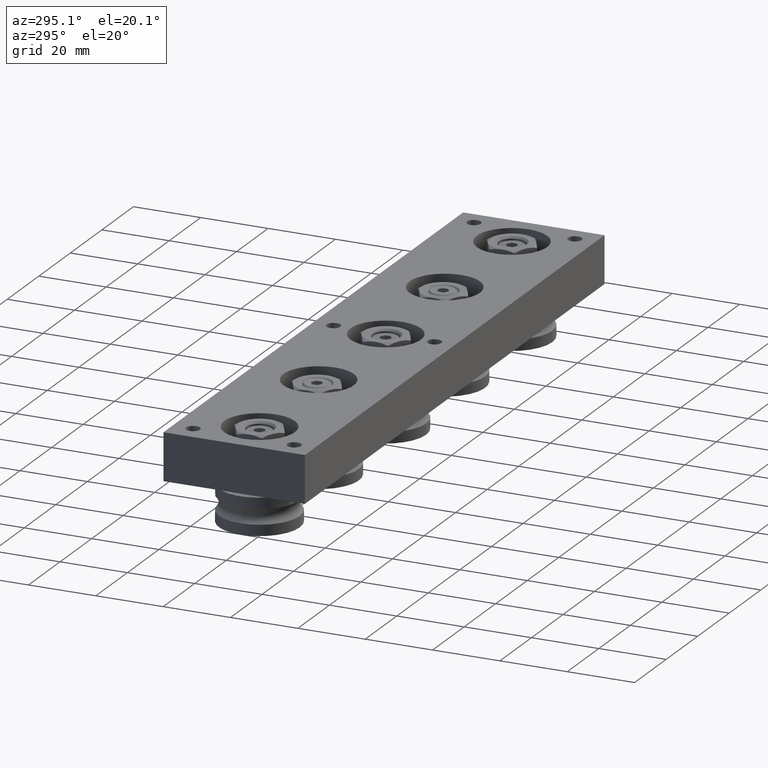
[diagram: clean part render]
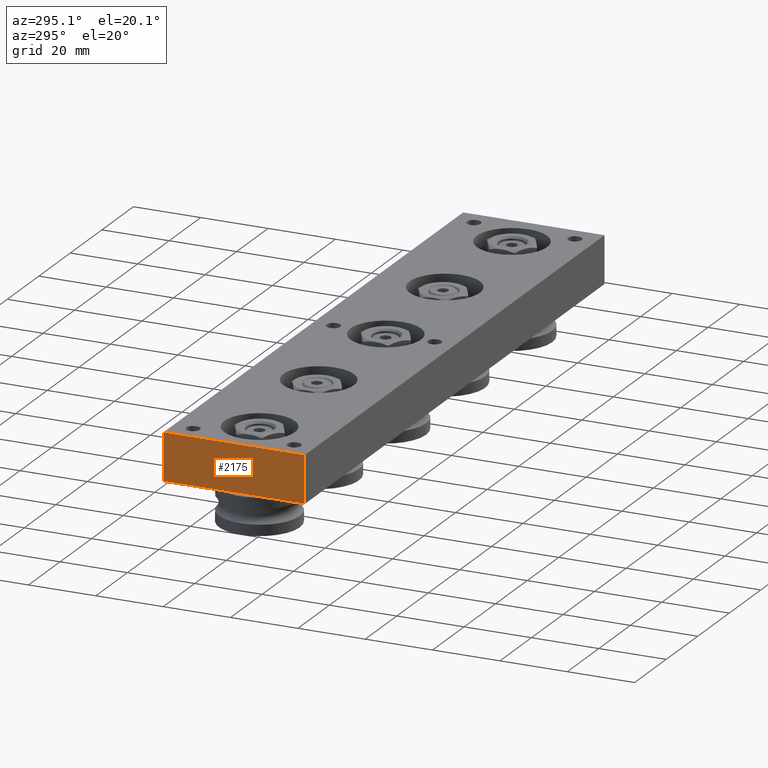
[diagram: same view with one face highlighted and labeled with its STEP entity id]
A machine part, auxiliary view. The second image highlights one B-rep face of the part: STEP entity #2175.
In plain terms, the highlighted planar face has unit normal (-1, 0, 0).
Its self-contained STEP definition (entity closure, byte-faithful):
#231=PLANE('',#2558);
#306=FACE_OUTER_BOUND('',#449,.T.);
#449=EDGE_LOOP('',(#1588,#1589,#1590,#1591));
#627=LINE('',#3652,#765);
#629=LINE('',#3656,#767);
#630=LINE('',#3658,#768);
#631=LINE('',#3659,#769);
#765=VECTOR('',#2935,10.);
#767=VECTOR('',#2939,10.);
#768=VECTOR('',#2940,10.);
#769=VECTOR('',#2941,10.);
#1053=VERTEX_POINT('',#3649);
#1054=VERTEX_POINT('',#3651);
#1055=VERTEX_POINT('',#3655);
#1056=VERTEX_POINT('',#3657);
#1262=EDGE_CURVE('',#1054,#1053,#627,.T.);
#1264=EDGE_CURVE('',#1053,#1055,#629,.T.);
#1265=EDGE_CURVE('',#1056,#1055,#630,.T.);
#1266=EDGE_CURVE('',#1054,#1056,#631,.T.);
#1588=ORIENTED_EDGE('',*,*,#1264,.T.);
#1589=ORIENTED_EDGE('',*,*,#1265,.F.);
#1590=ORIENTED_EDGE('',*,*,#1266,.F.);
#1591=ORIENTED_EDGE('',*,*,#1262,.T.);
#2175=ADVANCED_FACE('',(#306),#231,.T.);
#2558=AXIS2_PLACEMENT_3D('',#3654,#2937,#2938);
#2935=DIRECTION('',(0.,0.,1.));
#2937=DIRECTION('center_axis',(-1.,0.,0.));
#2938=DIRECTION('ref_axis',(0.,0.,1.));
#2939=DIRECTION('',(0.,1.,0.));
#2940=DIRECTION('',(0.,0.,1.));
#2941=DIRECTION('',(0.,1.,0.));
#3649=CARTESIAN_POINT('',(-95.,-21.,14.));
#3651=CARTESIAN_POINT('',(-95.,-21.,0.));
#3652=CARTESIAN_POINT('',(-95.,-21.,0.));
#3654=CARTESIAN_POINT('Origin',(-95.,-21.,0.));
#3655=CARTESIAN_POINT('',(-95.,21.,14.));
#3656=CARTESIAN_POINT('',(-95.,-21.,14.));
#3657=CARTESIAN_POINT('',(-95.,21.,0.));
#3658=CARTESIAN_POINT('',(-95.,21.,0.));
#3659=CARTESIAN_POINT('',(-95.,-21.,0.));